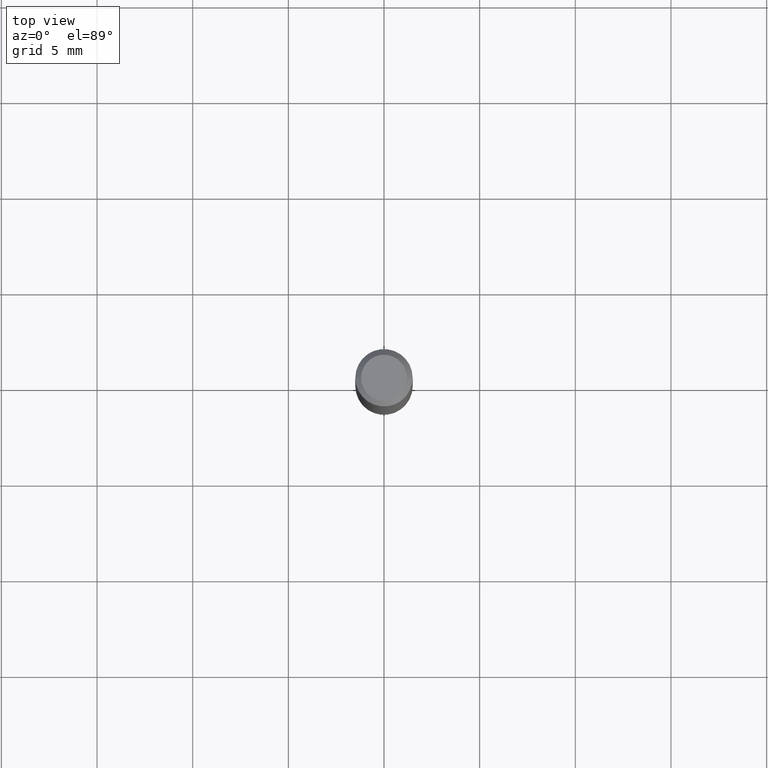
[diagram: clean part render]
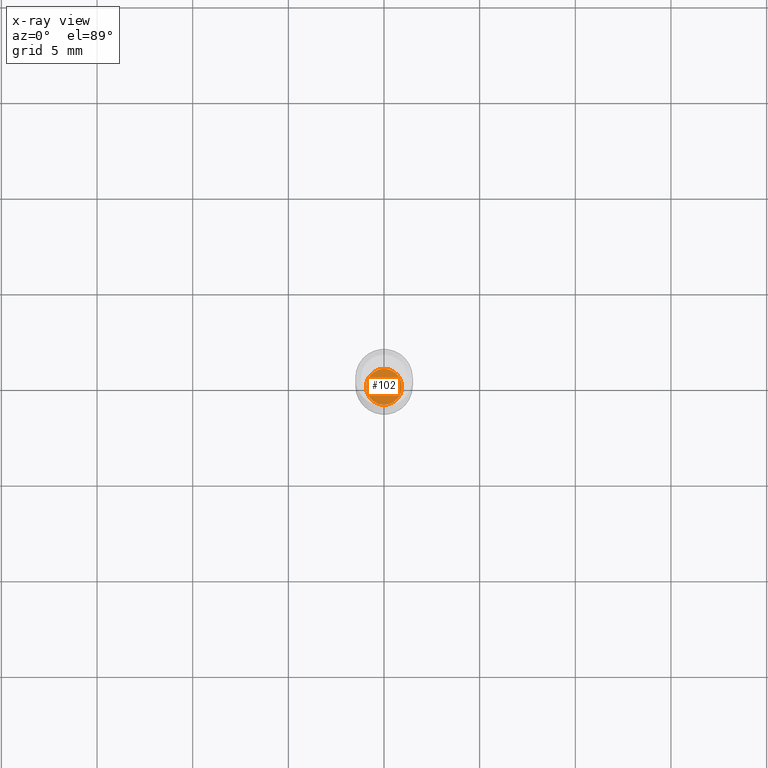
[diagram: x-ray — body ghosted, one internal face saturated and labeled with its STEP entity id]
A machine part, top view, then the same camera in x-ray: the body is ghosted and one INTERNAL B-rep face — a face not visible from any outside direction — is saturated and labeled: STEP entity #102.
In plain terms, the highlighted planar face has unit normal (-0, 0, 1).
Its self-contained STEP definition (entity closure, byte-faithful):
#47 = CARTESIAN_POINT ( 'NONE',  ( 2.676565608369631794E-29, -3.821426325363822773E-15, -1.094499999999999806 ) ) ;
#74 = EDGE_CURVE ( 'NONE', #308, #394, #253, .T. ) ;
#83 = CIRCLE ( 'NONE', #446, 0.03690000000000000224 ) ;
#90 = CARTESIAN_POINT ( 'NONE',  ( 2.676565608369631794E-29, -3.821426325363822773E-15, -1.094499999999999806 ) ) ;
#102 = ADVANCED_FACE ( 'NONE', ( #403 ), #344, .F. ) ;
#119 = DIRECTION ( 'NONE',  ( -2.445468806185136597E-29, 3.491481338843145583E-15, 1.000000000000000000 ) ) ;
#124 = EDGE_LOOP ( 'NONE', ( #182, #320 ) ) ;
#175 = CARTESIAN_POINT ( 'NONE',  ( -0.03690000000000000224, -3.556586828694234292E-15, -1.094499999999999806 ) ) ;
#182 = ORIENTED_EDGE ( 'NONE', *, *, #74, .F. ) ;
#184 = AXIS2_PLACEMENT_3D ( 'NONE', #449, #119, #415 ) ;
#213 = DIRECTION ( 'NONE',  ( -2.445468806185136597E-29, 3.491481338843145583E-15, 1.000000000000000000 ) ) ;
#245 = CARTESIAN_POINT ( 'NONE',  ( 0.03690000000000000224, -4.079097648170445378E-15, -1.094499999999999806 ) ) ;
#253 = CIRCLE ( 'NONE', #184, 0.03690000000000000224 ) ;
#308 = VERTEX_POINT ( 'NONE', #245 ) ;
#320 = ORIENTED_EDGE ( 'NONE', *, *, #369, .F. ) ;
#344 = PLANE ( 'NONE',  #456 ) ;
#369 = EDGE_CURVE ( 'NONE', #394, #308, #83, .T. ) ;
#388 = DIRECTION ( 'NONE',  ( 1.000000000000000000, -6.982962677686261189E-15, 0.000000000000000000 ) ) ;
#394 = VERTEX_POINT ( 'NONE', #175 ) ;
#403 = FACE_OUTER_BOUND ( 'NONE', #124, .T. ) ;
#415 = DIRECTION ( 'NONE',  ( 1.000000000000000000, -6.982962677686261189E-15, 0.000000000000000000 ) ) ;
#421 = DIRECTION ( 'NONE',  ( -2.438088387897960049E-29, 3.491481338843145188E-15, 1.000000000000000000 ) ) ;
#446 = AXIS2_PLACEMENT_3D ( 'NONE', #90, #213, #388 ) ;
#449 = CARTESIAN_POINT ( 'NONE',  ( 2.676565608369631794E-29, -3.821426325363822773E-15, -1.094499999999999806 ) ) ;
#454 = DIRECTION ( 'NONE',  ( 1.000000000000000000, -6.982962677686265922E-15, 4.876176775795935793E-29 ) ) ;
#456 = AXIS2_PLACEMENT_3D ( 'NONE', #47, #421, #454 ) ;